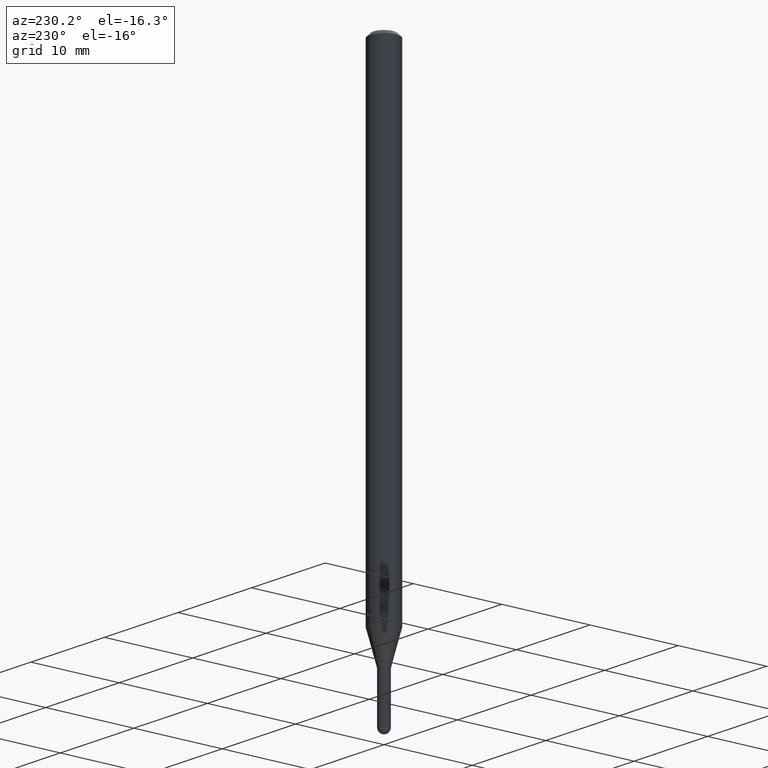
[diagram: clean part render]
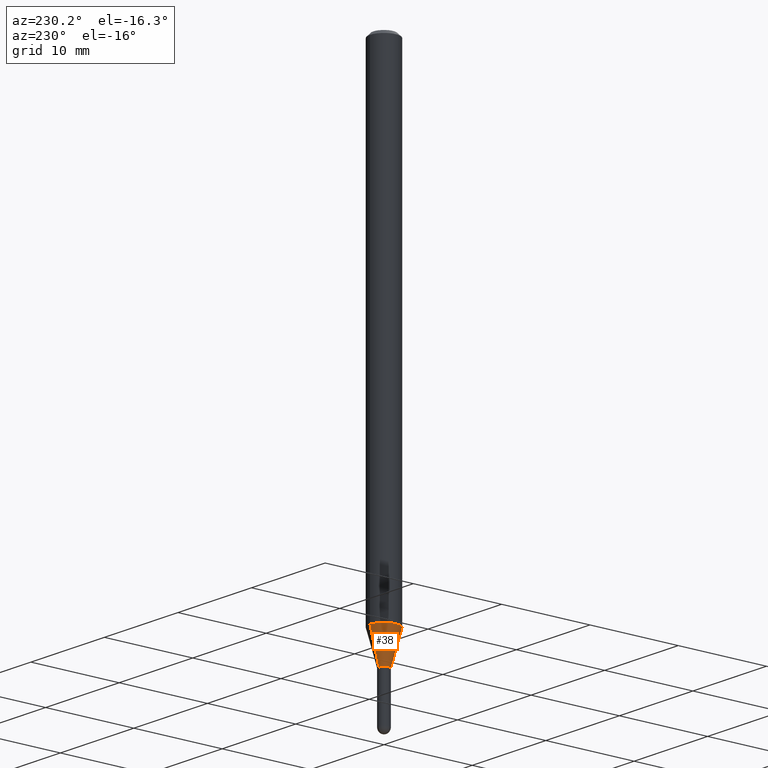
[diagram: same view with one face highlighted and labeled with its STEP entity id]
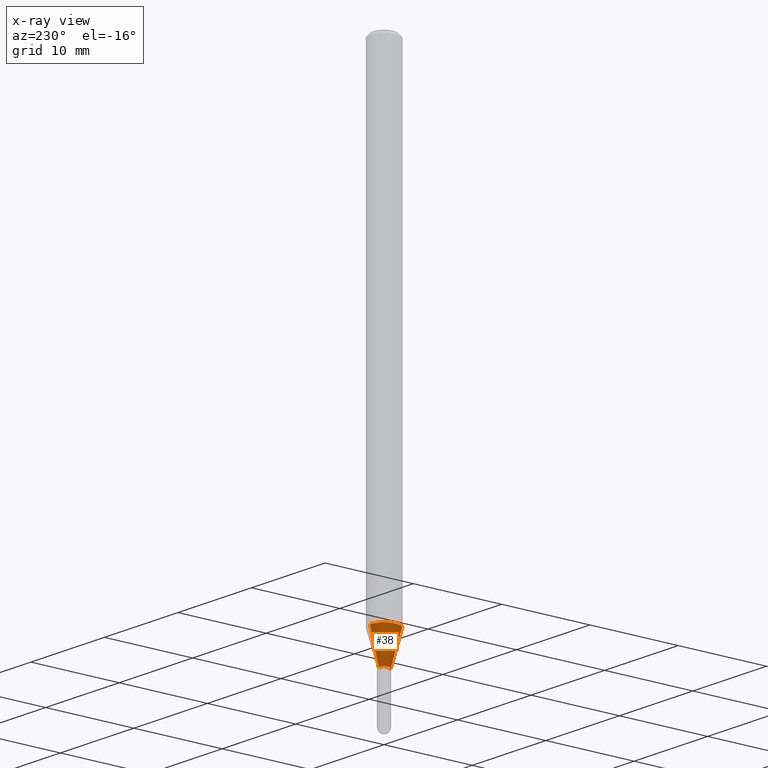
[diagram: x-ray of the same camera — body ghosted, the highlighted face saturated]
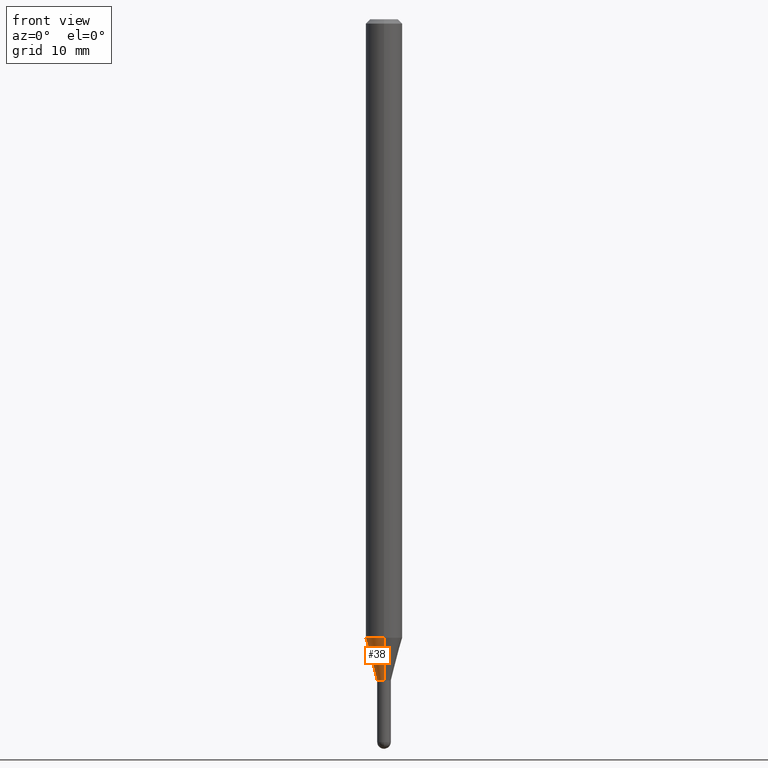
[diagram: same view with one face highlighted and labeled with its STEP entity id]
A machine part, auxiliary view. The second image highlights one B-rep face of the part: STEP entity #38.
The next image is the same camera in x-ray: the body ghosted, the highlighted face saturated — about 0% of this face is hidden behind the body in this view.
A second angle (front view) of the same face is appended — the face is thin or edge-on in the first view.
In plain terms, the highlighted conical surface has half-angle 15 deg.
Its self-contained STEP definition (entity closure, byte-faithful):
#14 = VERTEX_POINT ( 'NONE', #426 ) ;
#30 = DIRECTION ( 'NONE',  ( -2.445458010321293800E-29, 3.491496799134631242E-15, 1.000000000000000000 ) ) ;
#38 = ADVANCED_FACE ( 'NONE', ( #114 ), #271, .T. ) ;
#74 = DIRECTION ( 'NONE',  ( 1.839019923739650408E-15, 0.2588190451025319527, 0.9659258262890650926 ) ) ;
#80 = CIRCLE ( 'NONE', #506, 0.02350000000000019781 ) ;
#83 = ORIENTED_EDGE ( 'NONE', *, *, #379, .F. ) ;
#85 = CARTESIAN_POINT ( 'NONE',  ( 5.183026025228223920E-29, -7.400052955535410422E-15, -2.119450018504819067 ) ) ;
#92 = VECTOR ( 'NONE', #277, 39.37007874015748143 ) ;
#97 = VERTEX_POINT ( 'NONE', #120 ) ;
#103 = EDGE_LOOP ( 'NONE', ( #177, #135, #496, #83 ) ) ;
#111 = CARTESIAN_POINT ( 'NONE',  ( 1.669775429036802928E-16, 0.02349999999999228747, -2.265000000000000124 ) ) ;
#114 = FACE_OUTER_BOUND ( 'NONE', #103, .T. ) ;
#117 = AXIS2_PLACEMENT_3D ( 'NONE', #85, #242, #400 ) ;
#120 = CARTESIAN_POINT ( 'NONE',  ( 3.055333763768974376E-16, 0.02349999999999228401, -2.265000000000000124 ) ) ;
#130 = EDGE_CURVE ( 'NONE', #330, #194, #501, .T. ) ;
#135 = ORIENTED_EDGE ( 'NONE', *, *, #292, .T. ) ;
#167 = CARTESIAN_POINT ( 'NONE',  ( -1.640996229255732643E-16, -0.02350000000000810815, -2.265000000000000124 ) ) ;
#177 = ORIENTED_EDGE ( 'NONE', *, *, #226, .F. ) ;
#186 = DIRECTION ( 'NONE',  ( -6.982962677686265922E-15, -1.000000000000000000, 0.000000000000000000 ) ) ;
#194 = VERTEX_POINT ( 'NONE', #345 ) ;
#226 = EDGE_CURVE ( 'NONE', #97, #14, #390, .T. ) ;
#227 = CARTESIAN_POINT ( 'NONE',  ( 5.538962393377729959E-29, -7.908240250039939287E-15, -2.265000000000000124 ) ) ;
#242 = DIRECTION ( 'NONE',  ( -2.445458010321293800E-29, 3.491496799134631242E-15, 1.000000000000000000 ) ) ;
#271 = CONICAL_SURFACE ( 'NONE', #359, 0.02350000000000019781, 0.2617993877991575680 ) ;
#276 = DIRECTION ( 'NONE',  ( -6.982962677686265922E-15, -1.000000000000000000, 0.000000000000000000 ) ) ;
#277 = DIRECTION ( 'NONE',  ( -1.807323732225379443E-15, -0.2588190451025252359, 0.9659258262890670910 ) ) ;
#292 = EDGE_CURVE ( 'NONE', #97, #330, #80, .T. ) ;
#316 = DIRECTION ( 'NONE',  ( -2.445458010321293800E-29, 3.491496799134631242E-15, 1.000000000000000000 ) ) ;
#330 = VERTEX_POINT ( 'NONE', #167 ) ;
#341 = CIRCLE ( 'NONE', #117, 0.06250000000000000000 ) ;
#345 = CARTESIAN_POINT ( 'NONE',  ( -4.364351673553400483E-16, -0.06250000000000742462, -2.119450018504819067 ) ) ;
#359 = AXIS2_PLACEMENT_3D ( 'NONE', #391, #316, #276 ) ;
#379 = EDGE_CURVE ( 'NONE', #14, #194, #341, .T. ) ;
#390 = LINE ( 'NONE', #111, #464 ) ;
#391 = CARTESIAN_POINT ( 'NONE',  ( 5.538962393377729959E-29, -7.908240250039939287E-15, -2.265000000000000124 ) ) ;
#400 = DIRECTION ( 'NONE',  ( -6.982962677686265922E-15, -1.000000000000000000, 4.370956789862821150E-15 ) ) ;
#426 = CARTESIAN_POINT ( 'NONE',  ( 4.440892098501141880E-16, 0.06249999999999258232, -2.119450018504819511 ) ) ;
#464 = VECTOR ( 'NONE', #74, 39.37007874015748854 ) ;
#496 = ORIENTED_EDGE ( 'NONE', *, *, #130, .T. ) ;
#501 = LINE ( 'NONE', #504, #92 ) ;
#504 = CARTESIAN_POINT ( 'NONE',  ( -1.640996229255732643E-16, -0.02350000000000810815, -2.265000000000000124 ) ) ;
#506 = AXIS2_PLACEMENT_3D ( 'NONE', #227, #30, #186 ) ;